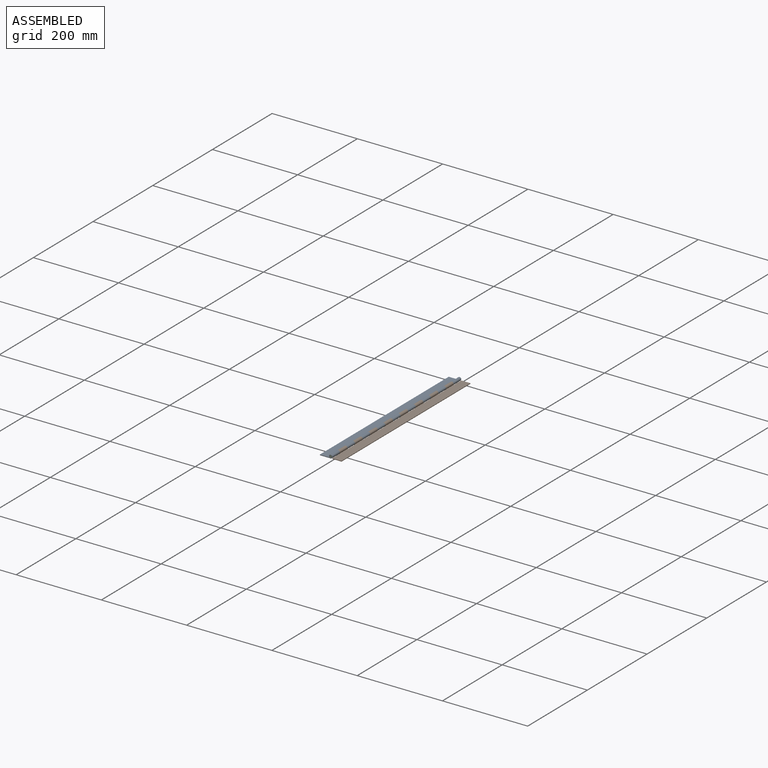
[diagram: assembled view]
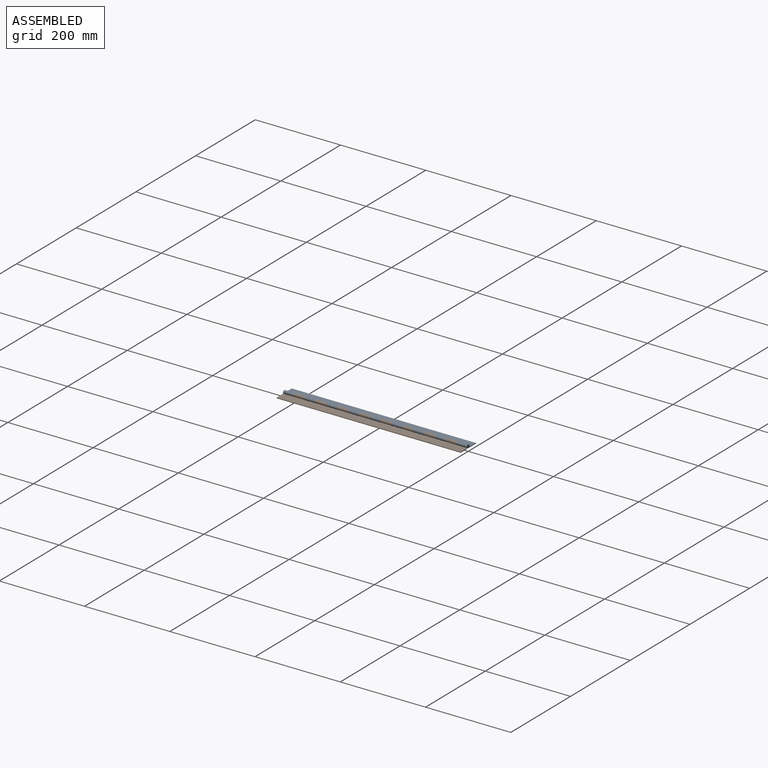
[diagram: assembled view, second angle]
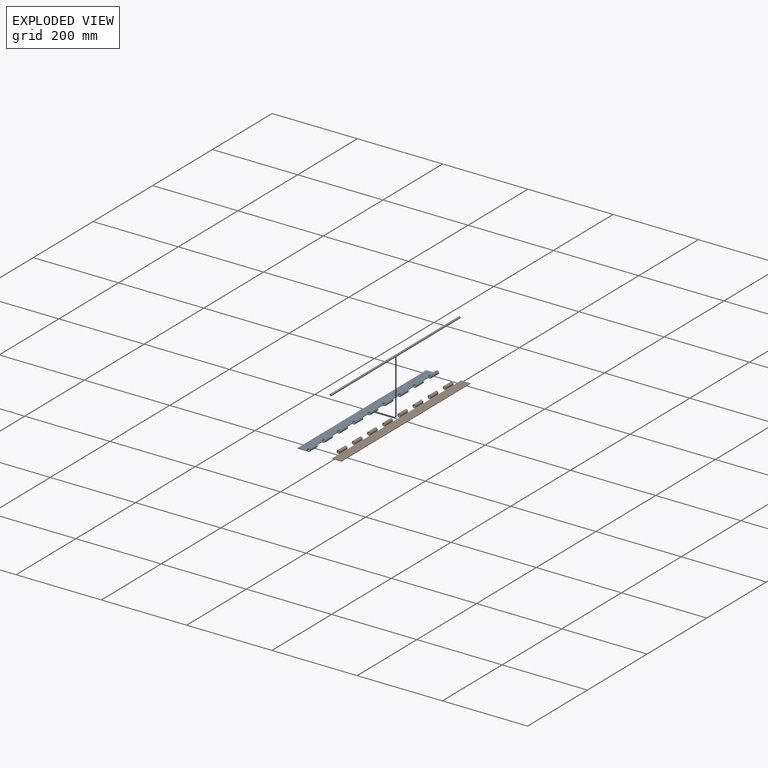
[diagram: exploded view]
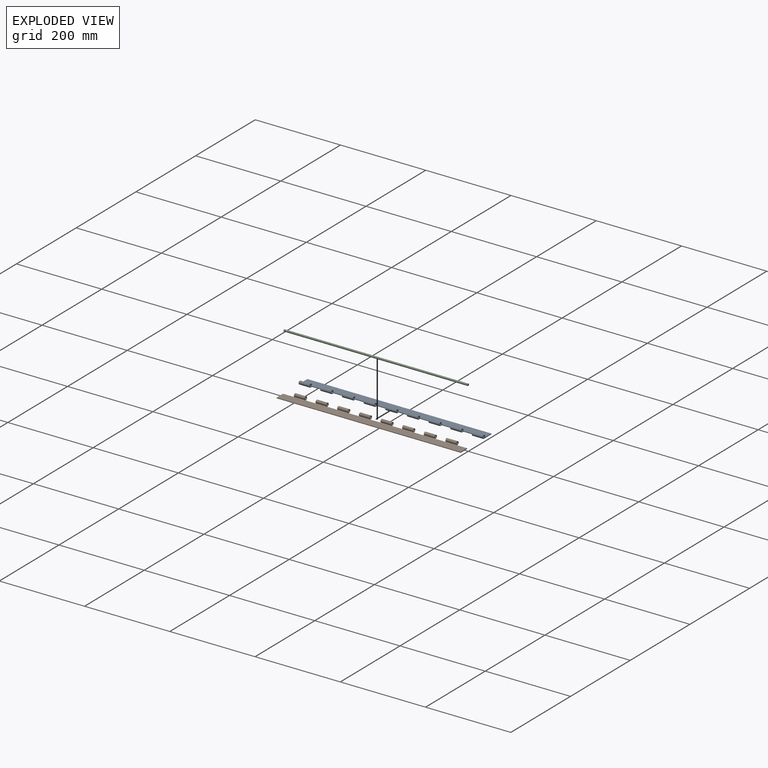
[diagram: exploded view, second angle]
ASSEMBLY  parts=3 mates=2
PART A: 56 faces, bbox 29.3x431.8x7.8 mm
  f0: plane 431.8x1.52mm, normal (-1,0,0), area 658.1mm2, adj f1,f2,f3,f31
  f1: plane 431.8x25.4mm, normal (0,0,1), area 10174.2mm2, adj f0,f3,f18,f19,f20,f21,f22,f23
  f2: plane 431.8x25.4mm, normal (0,0,-1), area 10174.2mm2, adj f0,f3,f4,f5,f6,f7,f8,f9
  f3: plane 29.31x7.81mm, normal (0,-1,0), area 64.4mm2, adj f0,f1,f2,f10,f17,f24
  f4: cylinder r=3.91mm len=25.4mm, axis (0,1,0), area 532.3mm2, adj f2,f11,f35,f55
  f5: cylinder r=3.91mm len=25.4mm, axis (0,1,0), area 532.3mm2, adj f2,f12,f52,f53
  f6: cylinder r=3.91mm len=25.4mm, axis (0,1,0), area 532.3mm2, adj f2,f13,f49,f50
  f7: cylinder r=3.91mm len=25.4mm, axis (0,1,0), area 532.3mm2, adj f2,f14,f46,f47
  f8: cylinder r=3.91mm len=25.4mm, axis (0,1,0), area 532.3mm2, adj f2,f15,f43,f44
  f9: cylinder r=3.91mm len=25.4mm, axis (0,1,0), area 532.3mm2, adj f2,f16,f40,f41
  f10: cylinder r=3.91mm len=25.4mm, axis (0,1,0), area 532.3mm2, adj f2,f3,f17,f38
  f11: plane 25.4x1.21mm, normal (0.61,0,-0.79), area 38.7mm2, adj f4,f18,f35,f55
  f12: plane 25.4x1.21mm, normal (0.61,0,-0.79), area 38.7mm2, adj f5,f19,f52,f53
  f13: plane 25.4x1.21mm, normal (0.61,0,-0.79), area 38.7mm2, adj f6,f20,f49,f50
  f14: plane 25.4x1.21mm, normal (0.61,0,-0.79), area 38.7mm2, adj f7,f21,f46,f47
  f15: plane 25.4x1.21mm, normal (0.61,0,-0.79), area 38.7mm2, adj f8,f22,f43,f44
  f16: plane 25.4x1.21mm, normal (0.61,0,-0.79), area 38.7mm2, adj f9,f23,f40,f41
  f17: plane 25.4x1.21mm, normal (0.61,0,-0.79), area 38.7mm2, adj f3,f10,f24,f38
  f18: cylinder r=2.38mm len=25.4mm, axis (0,1,0), area 324.6mm2, adj f1,f11,f35,f55
  f19: cylinder r=2.38mm len=25.4mm, axis (0,1,0), area 324.6mm2, adj f1,f12,f52,f53
  f20: cylinder r=2.38mm len=25.4mm, axis (0,1,0), area 324.6mm2, adj f1,f13,f49,f50
  f21: cylinder r=2.38mm len=25.4mm, axis (0,1,0), area 324.6mm2, adj f1,f14,f46,f47
  f22: cylinder r=2.38mm len=25.4mm, axis (0,1,0), area 324.6mm2, adj f1,f15,f43,f44
  f23: cylinder r=2.38mm len=25.4mm, axis (0,1,0), area 324.6mm2, adj f1,f16,f40,f41
  f24: cylinder r=2.38mm len=25.4mm, axis (0,1,0), area 324.6mm2, adj f1,f3,f17,f38
  f25: cylinder r=3.91mm len=25.4mm, axis (0,1,0), area 532.3mm2, adj f2,f26,f33,f37
  f26: plane 25.4x1.21mm, normal (0.61,0,-0.79), area 38.7mm2, adj f25,f27,f33,f37
  f27: cylinder r=2.38mm len=25.4mm, axis (0,1,0), area 324.6mm2, adj f1,f26,f33,f37
  f28: cylinder r=3.91mm len=25.4mm, axis (0,1,0), area 532.3mm2, adj f2,f29,f31,f34
  f29: plane 25.4x1.21mm, normal (0.61,0,-0.79), area 38.7mm2, adj f28,f30,f31,f34
  f30: cylinder r=2.38mm len=25.4mm, axis (0,1,0), area 324.6mm2, adj f1,f29,f31,f34
  f31: plane 29.31x7.81mm, normal (0,1,0), area 64.4mm2, adj f0,f1,f2,f28,f29,f30
  f32: plane 25.4x1.52mm, normal (1,0,0), area 38.7mm2, adj f1,f2,f33,f34
  f33: plane 7.81x7.81mm, normal (0,1,0), area 31.7mm2, adj f1,f2,f25,f26,f27,f32
  f34: plane 7.81x7.81mm, normal (0,-1,0), area 31.7mm2, adj f1,f2,f28,f29,f30,f32
  f35: plane 7.81x7.81mm, normal (0,1,0), area 31.7mm2, adj f1,f2,f4,f11,f18,f36
  f36: plane 25.4x1.52mm, normal (1,0,0), area 38.7mm2, adj f1,f2,f35,f37
  f37: plane 7.81x7.81mm, normal (0,-1,0), area 31.7mm2, adj f1,f2,f25,f26,f27,f36
  f38: plane 7.81x7.81mm, normal (0,1,0), area 31.7mm2, adj f1,f2,f10,f17,f24,f39
  f39: plane 25.4x1.52mm, normal (1,0,0), area 38.7mm2, adj f1,f2,f38,f40
  f40: plane 7.81x7.81mm, normal (0,-1,0), area 31.7mm2, adj f1,f2,f9,f16,f23,f39
  f41: plane 7.81x7.81mm, normal (0,1,0), area 31.7mm2, adj f1,f2,f9,f16,f23,f42
  f42: plane 25.4x1.52mm, normal (1,0,0), area 38.7mm2, adj f1,f2,f41,f43
  f43: plane 7.81x7.81mm, normal (0,-1,0), area 31.7mm2, adj f1,f2,f8,f15,f22,f42
  f44: plane 7.81x7.81mm, normal (0,1,0), area 31.7mm2, adj f1,f2,f8,f15,f22,f45
  f45: plane 25.4x1.52mm, normal (1,0,0), area 38.7mm2, adj f1,f2,f44,f46
  f46: plane 7.81x7.81mm, normal (0,-1,0), area 31.7mm2, adj f1,f2,f7,f14,f21,f45
  f47: plane 7.81x7.81mm, normal (0,1,0), area 31.7mm2, adj f1,f2,f7,f14,f21,f48
  f48: plane 25.4x1.52mm, normal (1,0,0), area 38.7mm2, adj f1,f2,f47,f49
  f49: plane 7.81x7.81mm, normal (0,-1,0), area 31.7mm2, adj f1,f2,f6,f13,f20,f48
  f50: plane 7.81x7.81mm, normal (0,1,0), area 31.7mm2, adj f1,f2,f6,f13,f20,f51
  f51: plane 25.4x1.52mm, normal (1,0,0), area 38.7mm2, adj f1,f2,f50,f52
  f52: plane 7.81x7.81mm, normal (0,-1,0), area 31.7mm2, adj f1,f2,f5,f12,f19,f51
  f53: plane 7.81x7.81mm, normal (0,1,0), area 31.7mm2, adj f1,f2,f5,f12,f19,f54
  f54: plane 25.4x1.52mm, normal (1,0,0), area 38.7mm2, adj f1,f2,f53,f55
  f55: plane 7.81x7.81mm, normal (0,-1,0), area 31.7mm2, adj f1,f2,f4,f11,f18,f54
PART B: 54 faces, bbox 29.3x431.8x7.8 mm
  f0: plane 431.8x1.52mm, normal (1,0,0), area 658.1mm2, adj f1,f2,f27,f53
  f1: plane 431.8x25.4mm, normal (0,0,-1), area 10075mm2, adj f0,f15,f16,f17,f18,f19,f20,f23
  f2: plane 431.8x25.4mm, normal (0,0,1), area 10075mm2, adj f0,f3,f4,f5,f6,f7,f8,f21
  f3: cylinder r=2.38mm len=25.4mm, axis (0,1,0), area 324.6mm2, adj f2,f9,f33,f52
  f4: cylinder r=2.38mm len=25.4mm, axis (0,1,0), area 324.6mm2, adj f2,f10,f49,f50
  f5: cylinder r=2.38mm len=25.4mm, axis (0,1,0), area 324.6mm2, adj f2,f11,f46,f47
  f6: cylinder r=2.38mm len=25.4mm, axis (0,1,0), area 324.6mm2, adj f2,f12,f43,f44
  f7: cylinder r=2.38mm len=25.4mm, axis (0,1,0), area 324.6mm2, adj f2,f13,f40,f41
  f8: cylinder r=2.38mm len=25.4mm, axis (0,1,0), area 324.6mm2, adj f2,f14,f37,f38
  f9: plane 25.4x1.21mm, normal (-0.61,0,-0.79), area 38.7mm2, adj f3,f15,f33,f52
  f10: plane 25.4x1.21mm, normal (-0.61,0,-0.79), area 38.7mm2, adj f4,f16,f49,f50
  f11: plane 25.4x1.21mm, normal (-0.61,0,-0.79), area 38.7mm2, adj f5,f17,f46,f47
  f12: plane 25.4x1.21mm, normal (-0.61,0,-0.79), area 38.7mm2, adj f6,f18,f43,f44
  f13: plane 25.4x1.21mm, normal (-0.61,0,-0.79), area 38.7mm2, adj f7,f19,f40,f41
  f14: plane 25.4x1.21mm, normal (-0.61,0,-0.79), area 38.7mm2, adj f8,f20,f37,f38
  f15: cylinder r=3.91mm len=25.4mm, axis (0,1,0), area 532.3mm2, adj f1,f9,f33,f52
  f16: cylinder r=3.91mm len=25.4mm, axis (0,1,0), area 532.3mm2, adj f1,f10,f49,f50
  f17: cylinder r=3.91mm len=25.4mm, axis (0,1,0), area 532.3mm2, adj f1,f11,f46,f47
  f18: cylinder r=3.91mm len=25.4mm, axis (0,1,0), area 532.3mm2, adj f1,f12,f43,f44
  f19: cylinder r=3.91mm len=25.4mm, axis (0,1,0), area 532.3mm2, adj f1,f13,f40,f41
  f20: cylinder r=3.91mm len=25.4mm, axis (0,1,0), area 532.3mm2, adj f1,f14,f37,f38
  f21: cylinder r=2.38mm len=25.4mm, axis (0,1,0), area 324.6mm2, adj f2,f22,f31,f35
  f22: plane 25.4x1.21mm, normal (-0.61,0,-0.79), area 38.7mm2, adj f21,f23,f31,f35
  f23: cylinder r=3.91mm len=25.4mm, axis (0,1,0), area 532.3mm2, adj f1,f22,f31,f35
  f24: cylinder r=2.38mm len=25.4mm, axis (0,1,0), area 324.6mm2, adj f2,f25,f28,f32
  f25: plane 25.4x1.21mm, normal (-0.61,0,-0.79), area 38.7mm2, adj f24,f26,f28,f32
  f26: cylinder r=3.91mm len=25.4mm, axis (0,1,0), area 532.3mm2, adj f1,f25,f28,f32
  f27: plane 21.49x1.52mm, normal (0,1,0), area 32.8mm2, adj f0,f1,f2,f29
  f28: plane 7.81x7.81mm, normal (0,1,0), area 31.7mm2, adj f1,f2,f24,f25,f26,f29
  f29: plane 25.4x1.52mm, normal (-1,0,0), area 38.7mm2, adj f1,f2,f27,f28
  f30: plane 25.4x1.52mm, normal (-1,0,0), area 38.7mm2, adj f1,f2,f31,f32
  f31: plane 7.81x7.81mm, normal (0,1,0), area 31.7mm2, adj f1,f2,f21,f22,f23,f30
  f32: plane 7.81x7.81mm, normal (0,-1,0), area 31.7mm2, adj f1,f2,f24,f25,f26,f30
  f33: plane 7.81x7.81mm, normal (0,1,0), area 31.7mm2, adj f1,f2,f3,f9,f15,f34
  f34: plane 25.4x1.52mm, normal (-1,0,0), area 38.7mm2, adj f1,f2,f33,f35
  f35: plane 7.81x7.81mm, normal (0,-1,0), area 31.7mm2, adj f1,f2,f21,f22,f23,f34
  f36: plane 25.4x1.52mm, normal (-1,0,0), area 38.7mm2, adj f1,f2,f37,f53
  f37: plane 7.81x7.81mm, normal (0,-1,0), area 31.7mm2, adj f1,f2,f8,f14,f20,f36
  f38: plane 7.81x7.81mm, normal (0,1,0), area 31.7mm2, adj f1,f2,f8,f14,f20,f39
  f39: plane 25.4x1.52mm, normal (-1,0,0), area 38.7mm2, adj f1,f2,f38,f40
  f40: plane 7.81x7.81mm, normal (0,-1,0), area 31.7mm2, adj f1,f2,f7,f13,f19,f39
  f41: plane 7.81x7.81mm, normal (0,1,0), area 31.7mm2, adj f1,f2,f7,f13,f19,f42
  f42: plane 25.4x1.52mm, normal (-1,0,0), area 38.7mm2, adj f1,f2,f41,f43
  f43: plane 7.81x7.81mm, normal (0,-1,0), area 31.7mm2, adj f1,f2,f6,f12,f18,f42
  f44: plane 7.81x7.81mm, normal (0,1,0), area 31.7mm2, adj f1,f2,f6,f12,f18,f45
  f45: plane 25.4x1.52mm, normal (-1,0,0), area 38.7mm2, adj f1,f2,f44,f46
  f46: plane 7.81x7.81mm, normal (0,-1,0), area 31.7mm2, adj f1,f2,f5,f11,f17,f45
  f47: plane 7.81x7.81mm, normal (0,1,0), area 31.7mm2, adj f1,f2,f5,f11,f17,f48
  f48: plane 25.4x1.52mm, normal (-1,0,0), area 38.7mm2, adj f1,f2,f47,f49
  f49: plane 7.81x7.81mm, normal (0,-1,0), area 31.7mm2, adj f1,f2,f4,f10,f16,f48
  f50: plane 7.81x7.81mm, normal (0,1,0), area 31.7mm2, adj f1,f2,f4,f10,f16,f51
  f51: plane 25.4x1.52mm, normal (-1,0,0), area 38.7mm2, adj f1,f2,f50,f52
  f52: plane 7.81x7.81mm, normal (0,-1,0), area 31.7mm2, adj f1,f2,f3,f9,f15,f51
  f53: plane 21.49x1.52mm, normal (0,-1,0), area 32.8mm2, adj f0,f1,f2,f36
PART C: 3 faces, bbox 4.8x431.8x4.8 mm
  f0: cylinder r=2.38mm len=431.8mm, axis (0,1,0), area 6460.5mm2, adj f1,f2
  f1: plane 4.76x4.76mm, normal (0,1,0), area 17.8mm2, adj f0
  f2: plane 4.76x4.76mm, normal (0,-1,0), area 17.8mm2, adj f0
PLACE A at identity
PLACE B at identity
PLACE C at identity
MATE revolute A.f4 <-> C.f0  axis (0,-1,0) through (0,-431.8,0)mm
MATE revolute B.f3 <-> A.f4  axis (0,-1,0) through (0,-406.4,0)mm
